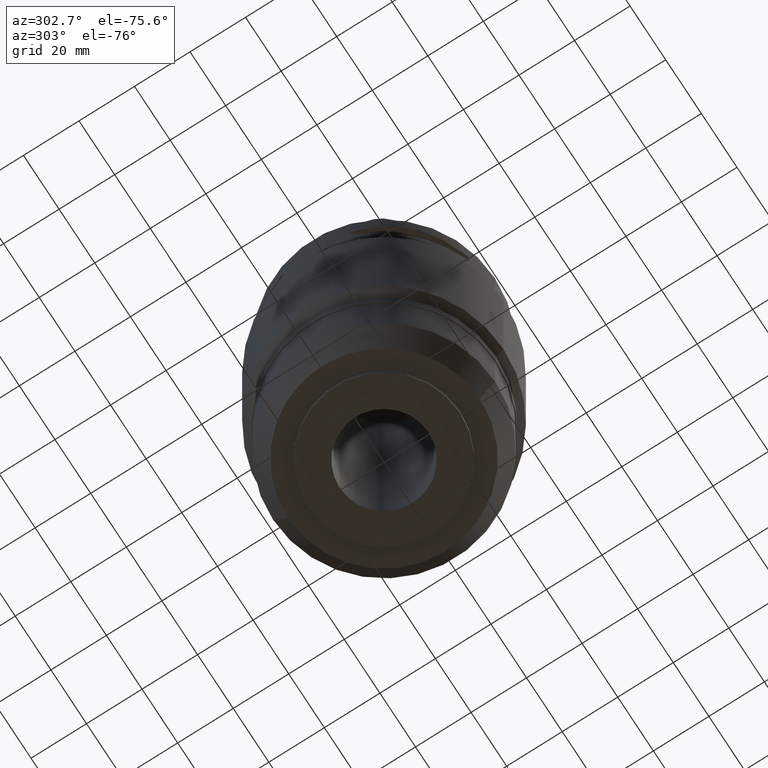
[diagram: clean part render]
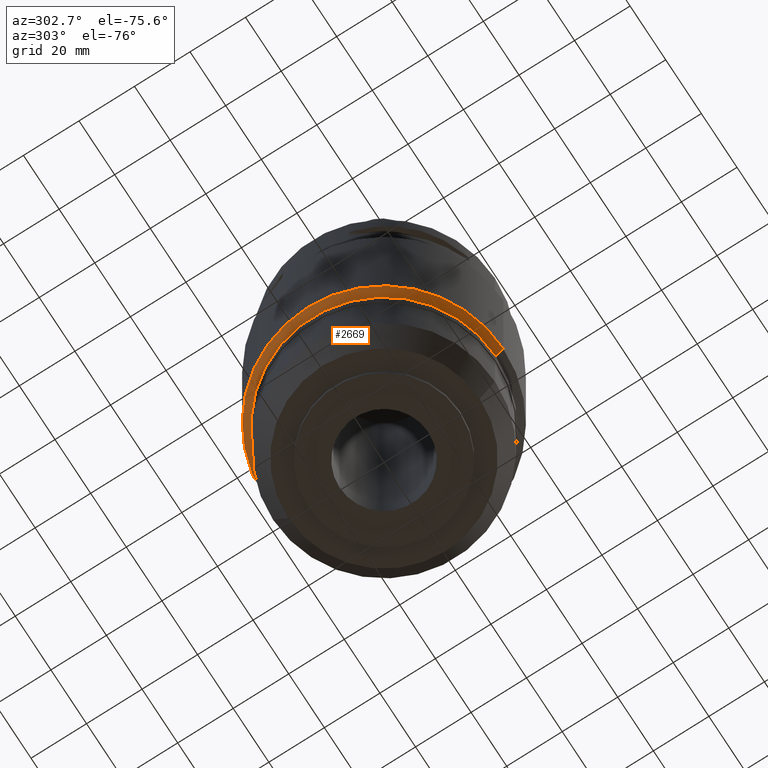
[diagram: same view with one face highlighted and labeled with its STEP entity id]
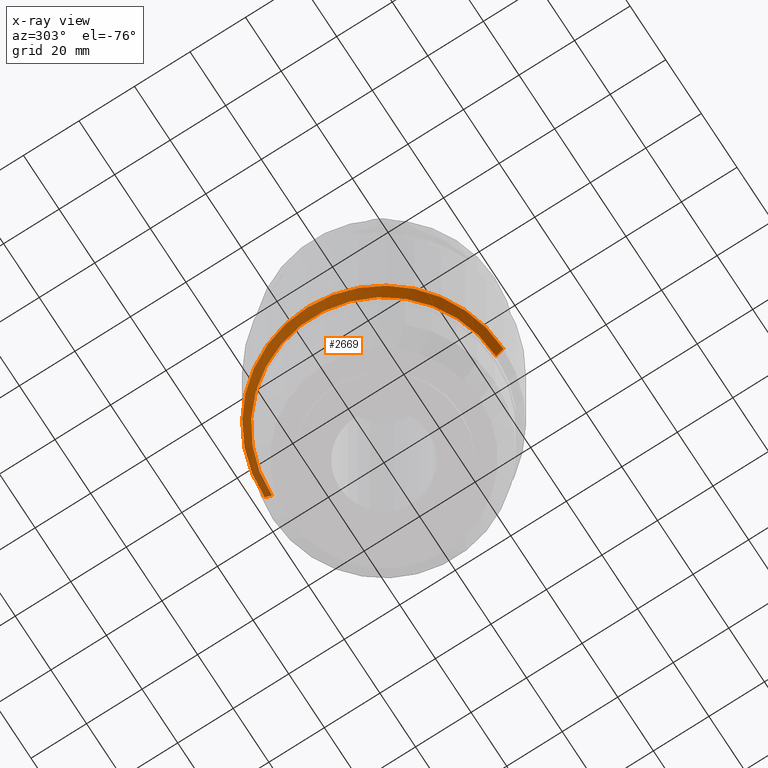
[diagram: x-ray of the same camera — body ghosted, the highlighted face saturated]
A machine part, auxiliary view. The second image highlights one B-rep face of the part: STEP entity #2669.
The next image is the same camera in x-ray: the body ghosted, the highlighted face saturated — about 6% of this face is hidden behind the body in this view.
In plain terms, the highlighted conical surface has half-angle 37 deg.
Its self-contained STEP definition (entity closure, byte-faithful):
#602=DIRECTION('',(0.E0,-6.018150231523E-1,-7.986355100471E-1));
#603=VECTOR('',#602,4.403346373971E0);
#604=CARTESIAN_POINT('',(0.E0,4.3E1,-9.24E1));
#605=LINE('',#604,#603);
#625=CARTESIAN_POINT('',(0.E0,0.E0,-9.24E1));
#626=DIRECTION('',(0.E0,0.E0,1.E0));
#627=DIRECTION('',(0.E0,1.E0,0.E0));
#628=AXIS2_PLACEMENT_3D('',#625,#626,#627);
#633=DIRECTION('',(0.E0,6.018150231523E-1,-7.986355100471E-1));
#634=VECTOR('',#633,4.403346373971E0);
#635=CARTESIAN_POINT('',(0.E0,-4.3E1,-9.24E1));
#636=LINE('',#635,#634);
#640=CARTESIAN_POINT('',(0.E0,0.E0,-9.591666877729E1));
#641=DIRECTION('',(0.E0,0.E0,-1.E0));
#642=DIRECTION('',(0.E0,-1.E0,0.E0));
#643=AXIS2_PLACEMENT_3D('',#640,#641,#642);
#1644=CARTESIAN_POINT('',(0.E0,4.3E1,-9.24E1));
#1645=VERTEX_POINT('',#1644);
#1646=CARTESIAN_POINT('',(0.E0,-4.3E1,-9.24E1));
#1647=VERTEX_POINT('',#1646);
#1648=CARTESIAN_POINT('',(0.E0,4.035E1,-9.591666877729E1));
#1649=VERTEX_POINT('',#1648);
#1650=CARTESIAN_POINT('',(0.E0,-4.035E1,-9.591666877729E1));
#1651=VERTEX_POINT('',#1650);
#2657=CARTESIAN_POINT('',(0.E0,0.E0,-9.415833438865E1));
#2658=DIRECTION('',(0.E0,0.E0,1.E0));
#2659=DIRECTION('',(0.E0,1.E0,0.E0));
#2660=AXIS2_PLACEMENT_3D('',#2657,#2658,#2659);
#2661=CONICAL_SURFACE('',#2660,4.1675E1,3.7E1);
#2662=ORIENTED_EDGE('',*,*,#2647,.F.);
#2663=ORIENTED_EDGE('',*,*,#2624,.T.);
#2664=ORIENTED_EDGE('',*,*,#2651,.T.);
#2666=ORIENTED_EDGE('',*,*,#2665,.T.);
#2667=EDGE_LOOP('',(#2662,#2663,#2664,#2666));
#2668=FACE_OUTER_BOUND('',#2667,.F.);
#629=CIRCLE('',#628,4.3E1);
#644=CIRCLE('',#643,4.035E1);
#2624=EDGE_CURVE('',#1645,#1647,#629,.T.);
#2647=EDGE_CURVE('',#1645,#1649,#605,.T.);
#2651=EDGE_CURVE('',#1647,#1651,#636,.T.);
#2665=EDGE_CURVE('',#1651,#1649,#644,.T.);
#2669=ADVANCED_FACE('',(#2668),#2661,.T.);